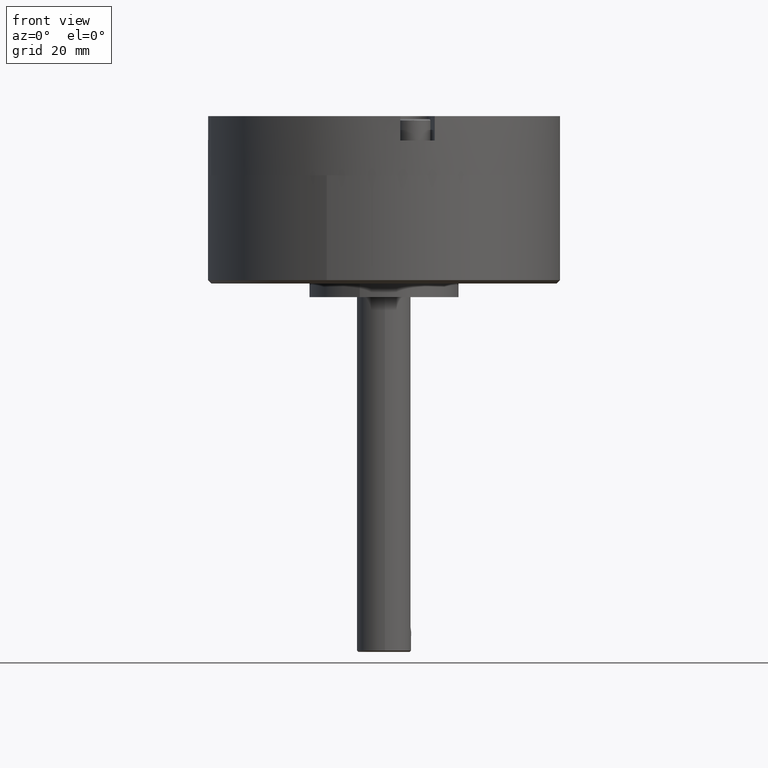
[diagram: clean part render]
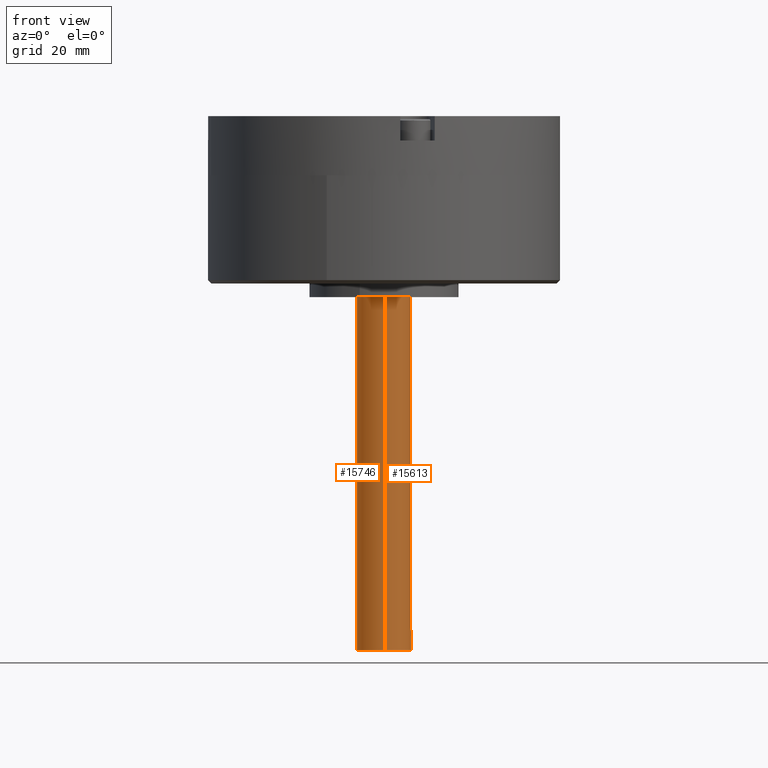
[diagram: same view with one multi-face feature highlighted, each face labeled with its STEP entity id]
A machine part, front view. The highlighted faces form ONE feature: a constant-radius fillet chain: 2 tangent blend faces with common blend radius 6.35 mm. The faces share edges in the B-rep.
Their STEP definitions:
[1] entity #15613 (Cylinder):
#44 = VERTEX_POINT ( 'NONE', #15098 ) ;
#56 = VERTEX_POINT ( 'NONE', #15135 ) ;
#100 = VERTEX_POINT ( 'NONE', #15189 ) ;
#101 = VERTEX_POINT ( 'NONE', #15243 ) ;
#104 = EDGE_CURVE ( 'NONE', #101, #100, #15236, .T. ) ;
#136 = ORIENTED_EDGE ( 'NONE', *, *, #15644, .T. ) ;
#7039 = CARTESIAN_POINT ( 'NONE',  ( -0.2500000000000000600, 0.0000000000000000000, 4.229999999999999500 ) ) ;
#7294 = DIRECTION ( 'NONE',  ( -0.0000000000000000000, -0.0000000000000000000, -1.000000000000000000 ) ) ;
#7295 = VECTOR ( 'NONE', #7294, 39.37007874015748100 ) ;
#7860 = CARTESIAN_POINT ( 'NONE',  ( -3.066624078507019400E-014, 0.2500000000000677800, 0.9174999999997285300 ) ) ;
#7861 = CARTESIAN_POINT ( 'NONE',  ( 0.008192483756581220000, 0.2500000000000016700, 0.9174999999999931000 ) ) ;
#7862 = CARTESIAN_POINT ( 'NONE',  ( 0.01644338760386238400, 0.2495729626698978100, 0.9191548725725501300 ) ) ;
#7863 = CARTESIAN_POINT ( 'NONE',  ( 0.03147995754410477100, 0.2481250913647034300, 0.9253966411236928000 ) ) ;
#7864 = CARTESIAN_POINT ( 'NONE',  ( 0.03843077575898494500, 0.2470974293903202000, 0.9300473174919232600 ) ) ;
#7865 = CARTESIAN_POINT ( 'NONE',  ( 0.04704768989044530400, 0.2455504650986390600, 0.9386569095280731200 ) ) ;
#7867 = CARTESIAN_POINT ( 'NONE',  ( 0.04967714177460189100, 0.2450256356014684200, 0.9418544738824280400 ) ) ;
#7868 = CARTESIAN_POINT ( 'NONE',  ( 0.05421507802648159500, 0.2440616844803379400, 0.9486372052861558000 ) ) ;
#7869 = CARTESIAN_POINT ( 'NONE',  ( 0.05613697862526437200, 0.2436211219801302000, 0.9522212432088711400 ) ) ;
#7870 = CARTESIAN_POINT ( 'NONE',  ( 0.05928168272256412200, 0.2428750574629106000, 0.9597836256560354800 ) ) ;
#7871 = CARTESIAN_POINT ( 'NONE',  ( 0.06049220898655016700, 0.2425724070061776900, 0.9637632286294707300 ) ) ;
#7872 = CARTESIAN_POINT ( 'NONE',  ( 0.06209110482377450100, 0.2421680711625837600, 0.9717759624043700300 ) ) ;
#7873 = CARTESIAN_POINT ( 'NONE',  ( 0.06249999999999880700, 0.2420614591379639500, 0.9758515879196075800 ) ) ;
#7875 = CARTESIAN_POINT ( 'NONE',  ( 0.06249999999999941000, 0.2420614591379637000, 0.9799999999999994300 ) ) ;
#7877 = B_SPLINE_CURVE_WITH_KNOTS ( 'NONE', 3,
 ( #7875, #7873, #7872, #7871, #7870, #7869, #7868, #7867, #7865, #7864, #7863, #7862, #7861, #7860 ),
 .UNSPECIFIED., .F., .F.,
 ( 4, 2, 2, 2, 2, 2, 4 ),
 ( 3.496446946337351300E-018, 0.0003115209942660669100, 0.0006230419885321303500, 0.0009345629827981937400, 0.001246083977064257200, 0.001869125965596376200, 0.002492167954128495400 ),
 .UNSPECIFIED. ) ;
#7910 = CARTESIAN_POINT ( 'NONE',  ( 0.06249999999999941000, 0.2420614591379637000, 3.980000000000000000 ) ) ;
#7911 = CARTESIAN_POINT ( 'NONE',  ( 0.06249999999999941000, 0.2420614591379637000, 0.9799999999999994300 ) ) ;
#7916 = CARTESIAN_POINT ( 'NONE',  ( -3.066624078507019400E-014, 0.2500000000000677800, 0.9174999999997285300 ) ) ;
#7928 = CARTESIAN_POINT ( 'NONE',  ( -0.06250000000000002800, 0.2420614591379635600, 3.980000000000000000 ) ) ;
#7936 = CARTESIAN_POINT ( 'NONE',  ( -0.06250000000000130500, 0.2420614591379635600, 0.9799999999999995400 ) ) ;
#7946 = DIRECTION ( 'NONE',  ( -1.000000000000000000, 0.0000000000000000000, 0.0000000000000000000 ) ) ;
#7950 = DIRECTION ( 'NONE',  ( -0.0000000000000000000, -0.0000000000000000000, -1.000000000000000000 ) ) ;
#7951 = VECTOR ( 'NONE', #7950, 39.37007874015748100 ) ;
#7952 = CARTESIAN_POINT ( 'NONE',  ( 0.06249999999999941000, 0.2420614591379637000, 4.229999999999999500 ) ) ;
#7953 = LINE ( 'NONE', #7952, #7951 ) ;
#7973 = CARTESIAN_POINT ( 'NONE',  ( -0.04969116359617867900, 0.2450227686636260200, 4.018126999472015900 ) ) ;
#7974 = CARTESIAN_POINT ( 'NONE',  ( -0.05422415422975357400, 0.2440596443519469600, 4.011346784944376700 ) ) ;
#7975 = CARTESIAN_POINT ( 'NONE',  ( -0.05614400221687820100, 0.2436194919993724900, 4.007764233094220300 ) ) ;
#7976 = CARTESIAN_POINT ( 'NONE',  ( -0.05928533021442120700, 0.2428741556615857100, 4.000205228175056000 ) ) ;
#7977 = CARTESIAN_POINT ( 'NONE',  ( -0.06049446369843933900, 0.2425718415753336000, 3.996227784723931800 ) ) ;
#7978 = CARTESIAN_POINT ( 'NONE',  ( -0.06209156285089535000, 0.2421679505759254400, 3.988219425645469100 ) ) ;
#7979 = CARTESIAN_POINT ( 'NONE',  ( -0.06249999999999991700, 0.2420614591379636200, 3.984146065314703800 ) ) ;
#7980 = CARTESIAN_POINT ( 'NONE',  ( -0.06250000000000002800, 0.2420614591379635600, 3.980000000000000000 ) ) ;
#7981 = B_SPLINE_CURVE_WITH_KNOTS ( 'NONE', 3,
 ( #7980, #7979, #7978, #7977, #7976, #7975, #7974, #7973, #8036, #8035, #8034, #8033, #8032, #8031, #8030, #8029, #8028, #8027, #8026, #8025, #8024, #8023, #8022, #8021, #8020, #8019 ),
 .UNSPECIFIED., .F., .F.,
 ( 4, 2, 2, 2, 2, 2, 2, 2, 2, 2, 2, 2, 4 ),
 ( 0.0000000000000000000, 0.0003113447661655440100, 0.0006226895323310880100, 0.0009340342984966319600, 0.001245379064662176000, 0.001868068596993263900, 0.002490758129324352000, 0.002802102895489896100, 0.003113447661655440200, 0.003736137193986512700, 0.004047481960152034600, 0.004358826726317556100, 0.004981516258648639000 ),
 .UNSPECIFIED. ) ;
#7982 = B_SPLINE_CURVE_WITH_KNOTS ( 'NONE', 3,
 ( #8016, #8015, #8014, #8008, #8007, #8006, #8005, #8004, #8003, #8002, #8076, #8075, #8074, #8073 ),
 .UNSPECIFIED., .F., .F.,
 ( 4, 2, 2, 2, 2, 2, 4 ),
 ( 0.002492167954128495400, 0.002803336492193517300, 0.003114505030258539200, 0.003736842106388586900, 0.004048010644453610600, 0.004359179182518634200, 0.004981516258648672000 ),
 .UNSPECIFIED. ) ;
#7985 = AXIS2_PLACEMENT_3D ( 'NONE', #7993, #7994, #7946 ) ;
#7986 = FACE_OUTER_BOUND ( 'NONE', #15633, .T. ) ;
#7991 = CYLINDRICAL_SURFACE ( 'NONE', #7985, 0.2500000000000000600 ) ;
#7993 = CARTESIAN_POINT ( 'NONE',  ( 0.0000000000000000000, 0.0000000000000000000, 4.229999999999999500 ) ) ;
#7994 = DIRECTION ( 'NONE',  ( -0.0000000000000000000, -0.0000000000000000000, -1.000000000000000000 ) ) ;
#8001 = FACE_BOUND ( 'NONE', #15611, .T. ) ;
#8002 = CARTESIAN_POINT ( 'NONE',  ( -0.05418214169952834800, 0.2440689200410500500, 0.9485827760670396700 ) ) ;
#8003 = CARTESIAN_POINT ( 'NONE',  ( -0.04966029091582446100, 0.2450289732160422200, 0.9418345451362466500 ) ) ;
#8004 = CARTESIAN_POINT ( 'NONE',  ( -0.04708796164647173500, 0.2455429947802680900, 0.9386997396421814500 ) ) ;
#8005 = CARTESIAN_POINT ( 'NONE',  ( -0.03840947683258689300, 0.2471017316009264400, 0.9300208779587044700 ) ) ;
#8006 = CARTESIAN_POINT ( 'NONE',  ( -0.03154458738355057900, 0.2481188380923898800, 0.9254236198998180300 ) ) ;
#8007 = CARTESIAN_POINT ( 'NONE',  ( -0.02017168164133480500, 0.2492139802702482100, 0.9207024340780312100 ) ) ;
#8008 = CARTESIAN_POINT ( 'NONE',  ( -0.01627057995795838300, 0.2495022952119482800, 0.9195165285574964400 ) ) ;
#8010 = DIRECTION ( 'NONE',  ( -0.0000000000000000000, -0.0000000000000000000, -1.000000000000000000 ) ) ;
#8011 = VECTOR ( 'NONE', #8010, 39.37007874015748100 ) ;
#8012 = CARTESIAN_POINT ( 'NONE',  ( 0.2500000000000000600, 3.061616997868383600E-017, 4.229999999999999500 ) ) ;
#8014 = CARTESIAN_POINT ( 'NONE',  ( -0.008248533680444657800, 0.2498961559934868600, 0.9179118064200046900 ) ) ;
#8015 = CARTESIAN_POINT ( 'NONE',  ( -0.004091607372577475500, 0.2499999999999992500, 0.9175000000000025400 ) ) ;
#8016 = CARTESIAN_POINT ( 'NONE',  ( -3.066624078507019400E-014, 0.2500000000000677800, 0.9174999999997285300 ) ) ;
#8019 = CARTESIAN_POINT ( 'NONE',  ( 0.06249999999999941000, 0.2420614591379637000, 3.980000000000000000 ) ) ;
#8020 = CARTESIAN_POINT ( 'NONE',  ( 0.06249999999999950700, 0.2420614591379638400, 3.988292346853244300 ) ) ;
#8021 = CARTESIAN_POINT ( 'NONE',  ( 0.06084258885623383700, 0.2425047844599048100, 3.996465556116436600 ) ) ;
#8022 = CARTESIAN_POINT ( 'NONE',  ( 0.05613787829273485200, 0.2436208866188580300, 4.007775167146717400 ) ) ;
#8023 = CARTESIAN_POINT ( 'NONE',  ( 0.05417296493093481900, 0.2440709796025639400, 4.011433330912369800 ) ) ;
#8024 = CARTESIAN_POINT ( 'NONE',  ( 0.04964641397160214600, 0.2450318077175366900, 4.018183740013457200 ) ) ;
#8025 = CARTESIAN_POINT ( 'NONE',  ( 0.04707140295356156100, 0.2455462069648641200, 4.021319386666457200 ) ) ;
#8026 = CARTESIAN_POINT ( 'NONE',  ( 0.03838359928095495800, 0.2471059008393623500, 4.029999840682484600 ) ) ;
#8027 = CARTESIAN_POINT ( 'NONE',  ( 0.03151174351489582900, 0.2481231871104730700, 4.034595952759787000 ) ) ;
#8028 = CARTESIAN_POINT ( 'NONE',  ( 0.02013012911693049300, 0.2492173838078667300, 4.039311823534689000 ) ) ;
#8029 = CARTESIAN_POINT ( 'NONE',  ( 0.01622602273880789300, 0.2495052470942711600, 4.040495614513287300 ) ) ;
#8030 = CARTESIAN_POINT ( 'NONE',  ( 0.008197672623766002000, 0.2498978797530047900, 4.042095099265677200 ) ) ;
#8031 = CARTESIAN_POINT ( 'NONE',  ( 0.004038054736920615800, 0.2500009044478496700, 4.042503617792745800 ) ) ;
#8032 = CARTESIAN_POINT ( 'NONE',  ( -0.008242946433470312700, 0.2499981725479200100, 4.042492690188971900 ) ) ;
#8033 = CARTESIAN_POINT ( 'NONE',  ( -0.01648811643786850600, 0.2495698187987337700, 4.040832386463704600 ) ) ;
#8034 = CARTESIAN_POINT ( 'NONE',  ( -0.03151177346701297000, 0.2481208588004345000, 4.034584295905523800 ) ) ;
#8035 = CARTESIAN_POINT ( 'NONE',  ( -0.03845594591115519800, 0.2470933792083986900, 4.029932585001448700 ) ) ;
#8036 = CARTESIAN_POINT ( 'NONE',  ( -0.04706434627667598100, 0.2455472393770412300, 4.021323909722598300 ) ) ;
#8040 = LINE ( 'NONE', #8012, #8011 ) ;
#8045 = LINE ( 'NONE', #7039, #7295 ) ;
#8068 = DIRECTION ( 'NONE',  ( 0.0000000000000000000, 0.0000000000000000000, 1.000000000000000000 ) ) ;
#8069 = VECTOR ( 'NONE', #8068, 39.37007874015748100 ) ;
#8070 = CARTESIAN_POINT ( 'NONE',  ( -0.06249999999999992400, 0.2420614591379636200, 4.229999999999999500 ) ) ;
#8071 = LINE ( 'NONE', #8070, #8069 ) ;
#8073 = CARTESIAN_POINT ( 'NONE',  ( -0.06250000000000130500, 0.2420614591379635600, 0.9799999999999995400 ) ) ;
#8074 = CARTESIAN_POINT ( 'NONE',  ( -0.06250000000000141600, 0.2420614591379632300, 0.9717123468005252100 ) ) ;
#8075 = CARTESIAN_POINT ( 'NONE',  ( -0.06084441389195083300, 0.2425042790059668600, 0.9635435494076000100 ) ) ;
#8076 = CARTESIAN_POINT ( 'NONE',  ( -0.05614495249203597200, 0.2436192445583512400, 0.9522394852955508000 ) ) ;
#8093 = DIRECTION ( 'NONE',  ( 1.000000000000000000, 0.0000000000000000000, 0.0000000000000000000 ) ) ;
#8094 = DIRECTION ( 'NONE',  ( 0.0000000000000000000, -0.0000000000000000000, 1.000000000000000000 ) ) ;
#8095 = AXIS2_PLACEMENT_3D ( 'NONE', #8105, #8094, #8093 ) ;
#8104 = CIRCLE ( 'NONE', #8095, 0.2500000000000000600 ) ;
#8105 = CARTESIAN_POINT ( 'NONE',  ( 0.0000000000000000000, 0.0000000000000000000, 0.2324999999999997600 ) ) ;
#15098 = CARTESIAN_POINT ( 'NONE',  ( 0.2500000000000000600, 3.061616997868383600E-017, 0.2324999999999997600 ) ) ;
#15135 = CARTESIAN_POINT ( 'NONE',  ( -0.2500000000000000600, 0.0000000000000000000, 0.2324999999999997600 ) ) ;
#15189 = CARTESIAN_POINT ( 'NONE',  ( 0.2500000000000000600, 3.061616997868383600E-017, 4.217499999999109400 ) ) ;
#15228 = DIRECTION ( 'NONE',  ( 1.000000000000000000, 0.0000000000000000000, 0.0000000000000000000 ) ) ;
#15229 = DIRECTION ( 'NONE',  ( 0.0000000000000000000, 0.0000000000000000000, -1.000000000000000000 ) ) ;
#15230 = CARTESIAN_POINT ( 'NONE',  ( 0.0000000000000000000, 0.0000000000000000000, 4.217499999999109400 ) ) ;
#15231 = AXIS2_PLACEMENT_3D ( 'NONE', #15230, #15229, #15228 ) ;
#15236 = CIRCLE ( 'NONE', #15231, 0.2500000000000000600 ) ;
#15243 = CARTESIAN_POINT ( 'NONE',  ( -0.2500000000000000600, 0.0000000000000000000, 4.217499999999109400 ) ) ;
#15545 = EDGE_CURVE ( 'NONE', #15586, #15591, #7877, .T. ) ;
#15575 = VERTEX_POINT ( 'NONE', #7936 ) ;
#15577 = VERTEX_POINT ( 'NONE', #7928 ) ;
#15586 = VERTEX_POINT ( 'NONE', #7911 ) ;
#15587 = VERTEX_POINT ( 'NONE', #7910 ) ;
#15591 = VERTEX_POINT ( 'NONE', #7916 ) ;
#15601 = EDGE_CURVE ( 'NONE', #15587, #15586, #7953, .T. ) ;
#15607 = ORIENTED_EDGE ( 'NONE', *, *, #15619, .F. ) ;
#15611 = EDGE_LOOP ( 'NONE', ( #15607, #15622, #15620, #15626, #15621 ) ) ;
#15613 = ADVANCED_FACE ( 'NONE', ( #8001, #7986 ), #7991, .T. ) ;
#15614 = EDGE_CURVE ( 'NONE', #15577, #15587, #7981, .T. ) ;
#15616 = EDGE_CURVE ( 'NONE', #15591, #15575, #7982, .T. ) ;
#15617 = EDGE_CURVE ( 'NONE', #100, #44, #8040, .T. ) ;
#15619 = EDGE_CURVE ( 'NONE', #15575, #15577, #8071, .T. ) ;
#15620 = ORIENTED_EDGE ( 'NONE', *, *, #15545, .F. ) ;
#15621 = ORIENTED_EDGE ( 'NONE', *, *, #15614, .F. ) ;
#15622 = ORIENTED_EDGE ( 'NONE', *, *, #15616, .F. ) ;
#15625 = ORIENTED_EDGE ( 'NONE', *, *, #104, .T. ) ;
#15626 = ORIENTED_EDGE ( 'NONE', *, *, #15601, .F. ) ;
#15628 = ORIENTED_EDGE ( 'NONE', *, *, #15617, .T. ) ;
#15633 = EDGE_LOOP ( 'NONE', ( #15625, #15628, #136, #15639 ) ) ;
#15639 = ORIENTED_EDGE ( 'NONE', *, *, #15641, .F. ) ;
#15641 = EDGE_CURVE ( 'NONE', #101, #56, #8045, .T. ) ;
#15644 = EDGE_CURVE ( 'NONE', #44, #56, #8104, .T. ) ;
[2] entity #15746 (Cylinder):
#44 = VERTEX_POINT ( 'NONE', #15098 ) ;
#56 = VERTEX_POINT ( 'NONE', #15135 ) ;
#67 = EDGE_CURVE ( 'NONE', #56, #44, #15118, .T. ) ;
#100 = VERTEX_POINT ( 'NONE', #15189 ) ;
#101 = VERTEX_POINT ( 'NONE', #15243 ) ;
#7039 = CARTESIAN_POINT ( 'NONE',  ( -0.2500000000000000600, 0.0000000000000000000, 4.229999999999999500 ) ) ;
#7294 = DIRECTION ( 'NONE',  ( -0.0000000000000000000, -0.0000000000000000000, -1.000000000000000000 ) ) ;
#7295 = VECTOR ( 'NONE', #7294, 39.37007874015748100 ) ;
#8010 = DIRECTION ( 'NONE',  ( -0.0000000000000000000, -0.0000000000000000000, -1.000000000000000000 ) ) ;
#8011 = VECTOR ( 'NONE', #8010, 39.37007874015748100 ) ;
#8012 = CARTESIAN_POINT ( 'NONE',  ( 0.2500000000000000600, 3.061616997868383600E-017, 4.229999999999999500 ) ) ;
#8040 = LINE ( 'NONE', #8012, #8011 ) ;
#8045 = LINE ( 'NONE', #7039, #7295 ) ;
#8152 = CYLINDRICAL_SURFACE ( 'NONE', #8205, 0.2500000000000000600 ) ;
#8176 = CIRCLE ( 'NONE', #8235, 0.2500000000000000600 ) ;
#8183 = CARTESIAN_POINT ( 'NONE',  ( 0.0000000000000000000, 0.0000000000000000000, 4.217499999999109400 ) ) ;
#8191 = DIRECTION ( 'NONE',  ( -1.000000000000000000, 0.0000000000000000000, 0.0000000000000000000 ) ) ;
#8192 = DIRECTION ( 'NONE',  ( -0.0000000000000000000, -0.0000000000000000000, -1.000000000000000000 ) ) ;
#8193 = CARTESIAN_POINT ( 'NONE',  ( 0.0000000000000000000, 0.0000000000000000000, 4.229999999999999500 ) ) ;
#8197 = FACE_OUTER_BOUND ( 'NONE', #15687, .T. ) ;
#8205 = AXIS2_PLACEMENT_3D ( 'NONE', #8193, #8192, #8191 ) ;
#8233 = DIRECTION ( 'NONE',  ( 1.000000000000000000, 0.0000000000000000000, 0.0000000000000000000 ) ) ;
#8234 = DIRECTION ( 'NONE',  ( 0.0000000000000000000, 0.0000000000000000000, -1.000000000000000000 ) ) ;
#8235 = AXIS2_PLACEMENT_3D ( 'NONE', #8183, #8234, #8233 ) ;
#15098 = CARTESIAN_POINT ( 'NONE',  ( 0.2500000000000000600, 3.061616997868383600E-017, 0.2324999999999997600 ) ) ;
#15118 = CIRCLE ( 'NONE', #15133, 0.2500000000000000600 ) ;
#15133 = AXIS2_PLACEMENT_3D ( 'NONE', #15170, #15169, #15168 ) ;
#15135 = CARTESIAN_POINT ( 'NONE',  ( -0.2500000000000000600, 0.0000000000000000000, 0.2324999999999997600 ) ) ;
#15168 = DIRECTION ( 'NONE',  ( 1.000000000000000000, 0.0000000000000000000, 0.0000000000000000000 ) ) ;
#15169 = DIRECTION ( 'NONE',  ( 0.0000000000000000000, -0.0000000000000000000, 1.000000000000000000 ) ) ;
#15170 = CARTESIAN_POINT ( 'NONE',  ( 0.0000000000000000000, 0.0000000000000000000, 0.2324999999999997600 ) ) ;
#15189 = CARTESIAN_POINT ( 'NONE',  ( 0.2500000000000000600, 3.061616997868383600E-017, 4.217499999999109400 ) ) ;
#15243 = CARTESIAN_POINT ( 'NONE',  ( -0.2500000000000000600, 0.0000000000000000000, 4.217499999999109400 ) ) ;
#15617 = EDGE_CURVE ( 'NONE', #100, #44, #8040, .T. ) ;
#15641 = EDGE_CURVE ( 'NONE', #101, #56, #8045, .T. ) ;
#15687 = EDGE_LOOP ( 'NONE', ( #15766, #15725, #15734, #15769 ) ) ;
#15725 = ORIENTED_EDGE ( 'NONE', *, *, #15763, .T. ) ;
#15734 = ORIENTED_EDGE ( 'NONE', *, *, #15641, .T. ) ;
#15746 = ADVANCED_FACE ( 'NONE', ( #8197 ), #8152, .T. ) ;
#15763 = EDGE_CURVE ( 'NONE', #100, #101, #8176, .T. ) ;
#15766 = ORIENTED_EDGE ( 'NONE', *, *, #15617, .F. ) ;
#15769 = ORIENTED_EDGE ( 'NONE', *, *, #67, .T. ) ;